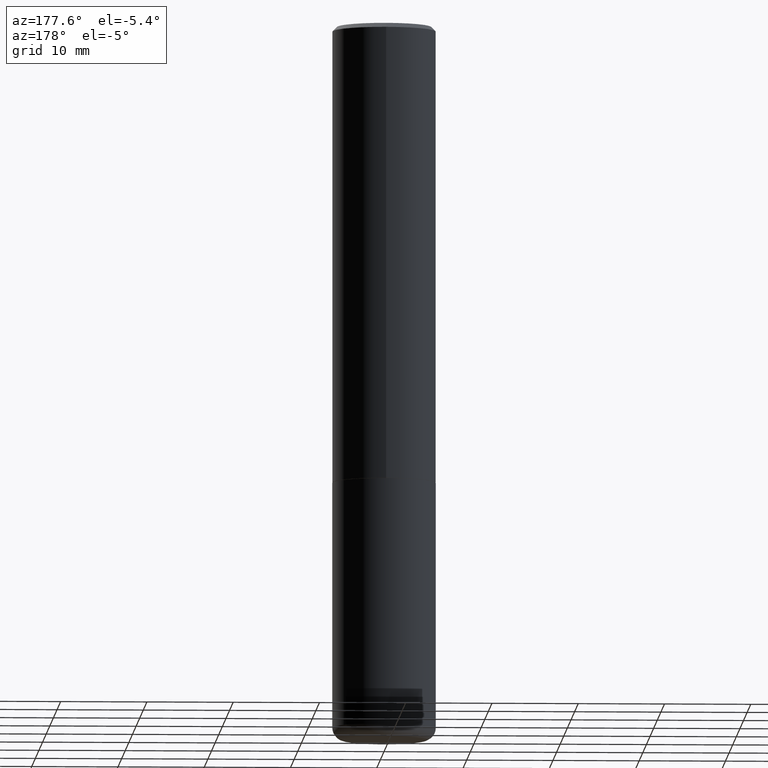
[diagram: clean part render]
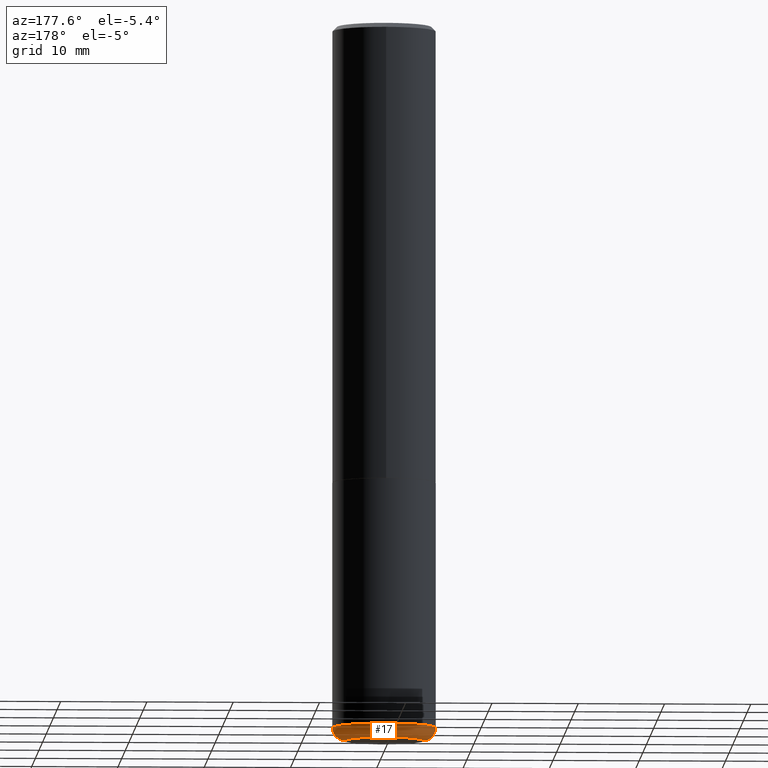
[diagram: same view with one face highlighted and labeled with its STEP entity id]
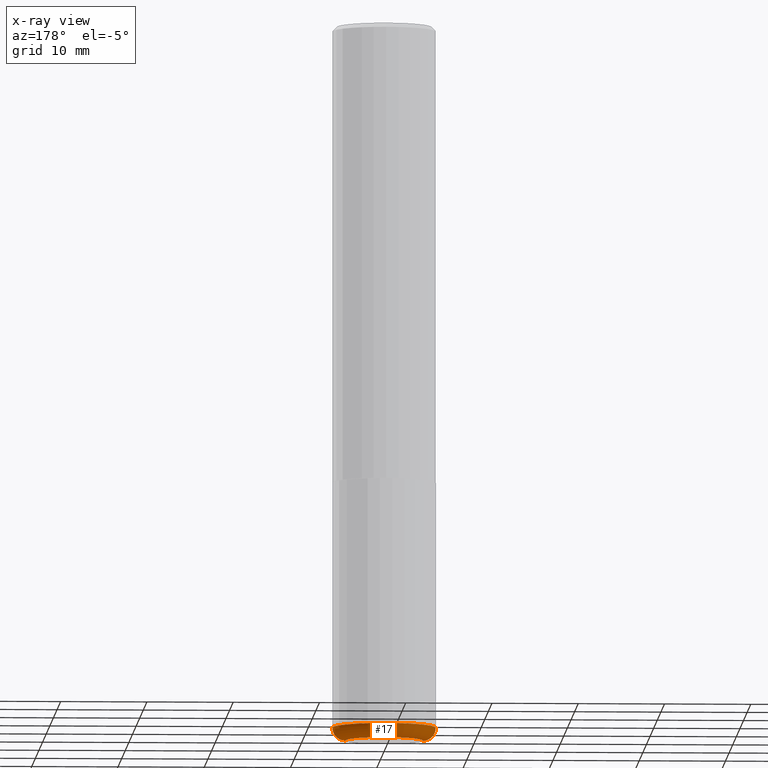
[diagram: x-ray of the same camera — body ghosted, the highlighted face saturated]
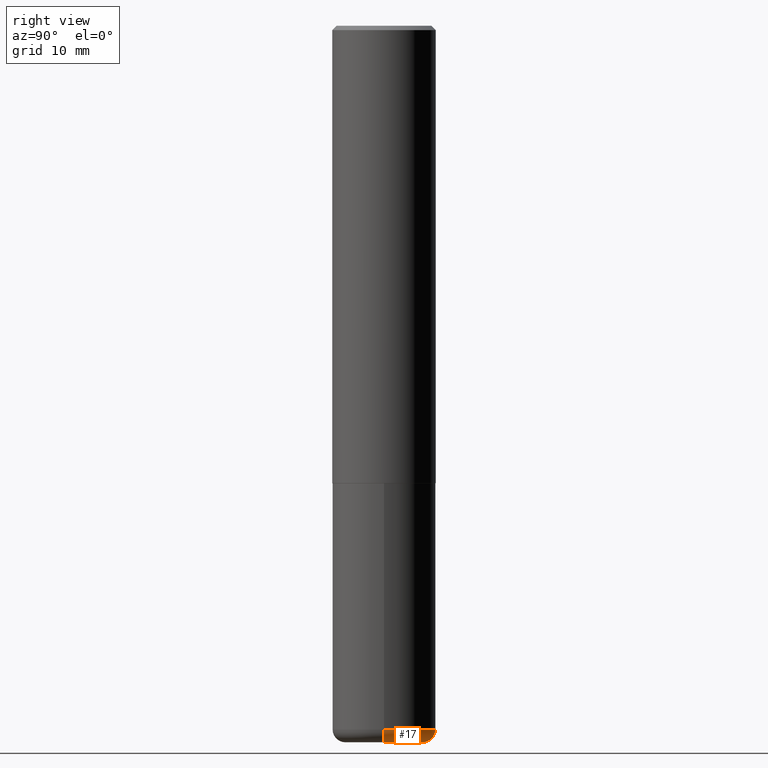
[diagram: same view with one face highlighted and labeled with its STEP entity id]
A machine part, auxiliary view. The second image highlights one B-rep face of the part: STEP entity #17.
The next image is the same camera in x-ray: the body ghosted, the highlighted face saturated — about 0% of this face is hidden behind the body in this view.
A second angle (right view) of the same face is appended — the face is thin or edge-on in the first view.
In plain terms, the highlighted toroidal blend (fillet) surface has major radius 4.4983 mm and minor (blend) radius 1.5011 mm.
Its self-contained STEP definition (entity closure, byte-faithful):
#4 = DIRECTION ( 'NONE',  ( -2.445468806185136597E-29, 3.491481338843145583E-15, 1.000000000000000000 ) ) ;
#5 = EDGE_CURVE ( 'NONE', #24, #235, #342, .T. ) ;
#7 = TOROIDAL_SURFACE ( 'NONE', #220, 0.1771000000000000074, 0.05909999999999997200 ) ;
#8 = CARTESIAN_POINT ( 'NONE',  ( 7.991058417971171713E-29, -1.140911357093774644E-14, -3.267700000000000049 ) ) ;
#15 = AXIS2_PLACEMENT_3D ( 'NONE', #223, #48, #217 ) ;
#17 = ADVANCED_FACE ( 'NONE', ( #350 ), #7, .T. ) ;
#24 = VERTEX_POINT ( 'NONE', #151 ) ;
#45 = ORIENTED_EDGE ( 'NONE', *, *, #155, .T. ) ;
#48 = DIRECTION ( 'NONE',  ( -6.982962677686266711E-15, -1.000000000000000000, 3.491481338843145583E-15 ) ) ;
#67 = CARTESIAN_POINT ( 'NONE',  ( 0.1771000000000000074, -1.264579626115598374E-14, -3.267700000000000049 ) ) ;
#87 = EDGE_LOOP ( 'NONE', ( #45, #196, #198, #378 ) ) ;
#125 = VERTEX_POINT ( 'NONE', #359 ) ;
#128 = CIRCLE ( 'NONE', #15, 0.05909999999999999282 ) ;
#145 = EDGE_CURVE ( 'NONE', #125, #235, #336, .T. ) ;
#151 = CARTESIAN_POINT ( 'NONE',  ( 0.2361999999999999933, -1.285214280828161414E-14, -3.208600000000000119 ) ) ;
#154 = CARTESIAN_POINT ( 'NONE',  ( 7.846531211525630380E-29, -1.120276702381211762E-14, -3.208600000000000119 ) ) ;
#155 = EDGE_CURVE ( 'NONE', #369, #125, #356, .T. ) ;
#157 = CARTESIAN_POINT ( 'NONE',  ( 7.846531211525630380E-29, -1.120276702381211762E-14, -3.208600000000000119 ) ) ;
#181 = DIRECTION ( 'NONE',  ( -2.445468806185136597E-29, 3.491481338843145583E-15, 1.000000000000000000 ) ) ;
#196 = ORIENTED_EDGE ( 'NONE', *, *, #145, .T. ) ;
#198 = ORIENTED_EDGE ( 'NONE', *, *, #5, .F. ) ;
#215 = CARTESIAN_POINT ( 'NONE',  ( -0.1771000000000000074, -9.944395838780979940E-15, -3.208600000000000119 ) ) ;
#217 = DIRECTION ( 'NONE',  ( 1.000000000000000000, -6.982962677686262766E-15, 0.000000000000000000 ) ) ;
#220 = AXIS2_PLACEMENT_3D ( 'NONE', #157, #4, #251 ) ;
#222 = DIRECTION ( 'NONE',  ( 1.000000000000000000, -6.982962677686264344E-15, 0.000000000000000000 ) ) ;
#223 = CARTESIAN_POINT ( 'NONE',  ( 0.1771000000000000074, -1.243944971403035492E-14, -3.208600000000000119 ) ) ;
#235 = VERTEX_POINT ( 'NONE', #417 ) ;
#238 = AXIS2_PLACEMENT_3D ( 'NONE', #215, #322, #287 ) ;
#251 = DIRECTION ( 'NONE',  ( 1.000000000000000000, -6.982962677686264344E-15, 4.883557194083111780E-29 ) ) ;
#255 = DIRECTION ( 'NONE',  ( -2.445468806185136597E-29, 3.491481338843145583E-15, 1.000000000000000000 ) ) ;
#260 = AXIS2_PLACEMENT_3D ( 'NONE', #8, #255, #393 ) ;
#287 = DIRECTION ( 'NONE',  ( -1.000000000000000000, 7.105427357600993181E-15, 0.000000000000000000 ) ) ;
#294 = AXIS2_PLACEMENT_3D ( 'NONE', #154, #181, #222 ) ;
#322 = DIRECTION ( 'NONE',  ( 7.105427357601001859E-15, 1.000000000000000000, -3.491481338843145583E-15 ) ) ;
#336 = CIRCLE ( 'NONE', #238, 0.05909999999999999282 ) ;
#342 = CIRCLE ( 'NONE', #294, 0.2362000000000000210 ) ;
#350 = FACE_OUTER_BOUND ( 'NONE', #87, .T. ) ;
#356 = CIRCLE ( 'NONE', #260, 0.1771000000000000074 ) ;
#359 = CARTESIAN_POINT ( 'NONE',  ( -0.1771000000000000074, -9.837603733926685782E-15, -3.267700000000000049 ) ) ;
#369 = VERTEX_POINT ( 'NONE', #67 ) ;
#378 = ORIENTED_EDGE ( 'NONE', *, *, #406, .F. ) ;
#393 = DIRECTION ( 'NONE',  ( 1.000000000000000000, -6.982962677686265922E-15, 0.000000000000000000 ) ) ;
#406 = EDGE_CURVE ( 'NONE', #369, #24, #128, .T. ) ;
#417 = CARTESIAN_POINT ( 'NONE',  ( -0.2361999999999999933, -9.524465081946761225E-15, -3.208600000000000119 ) ) ;